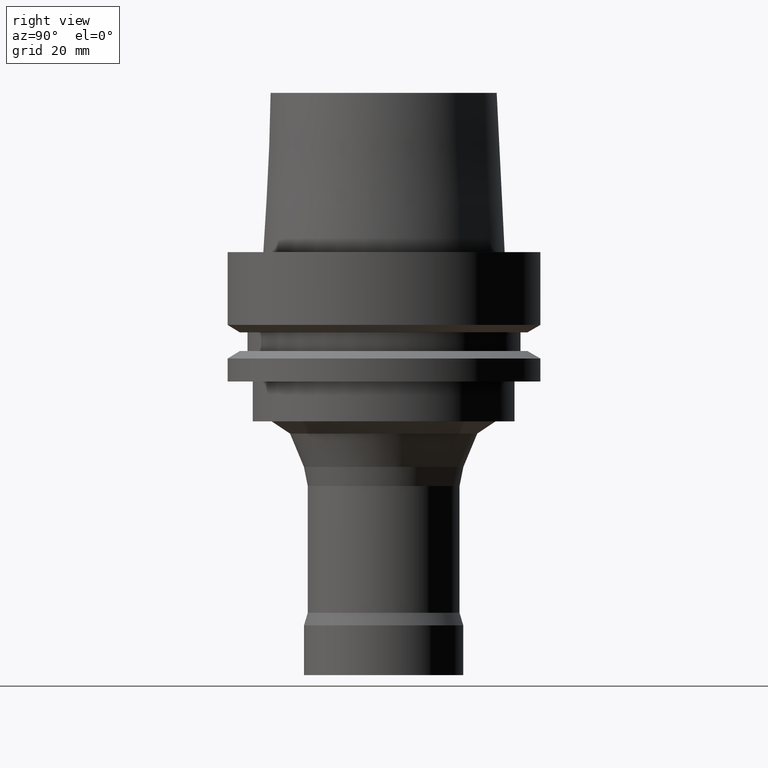
[diagram: clean part render]
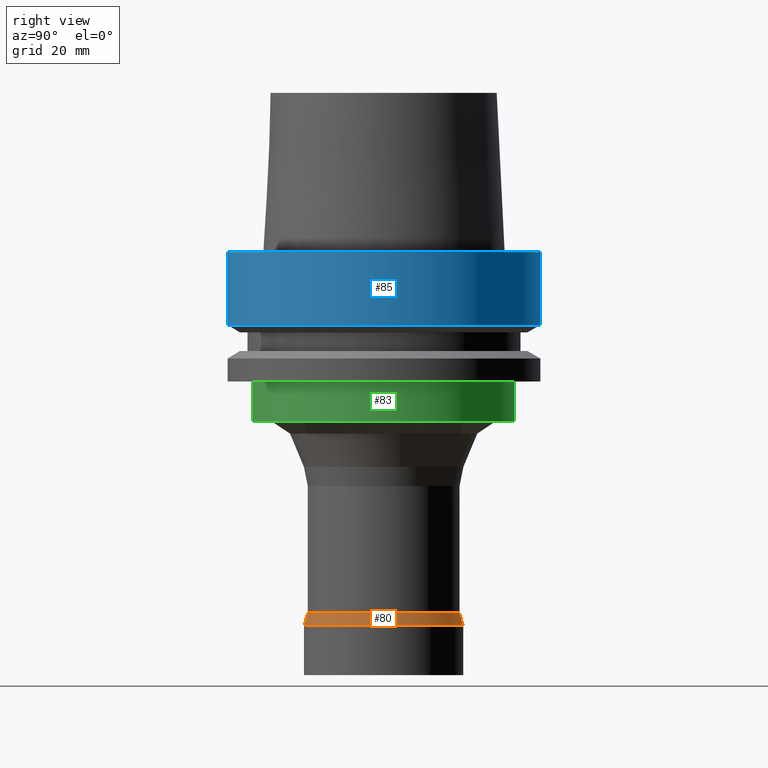
[diagram: same view with three faces highlighted in distinct colors, each labeled with its STEP entity id]
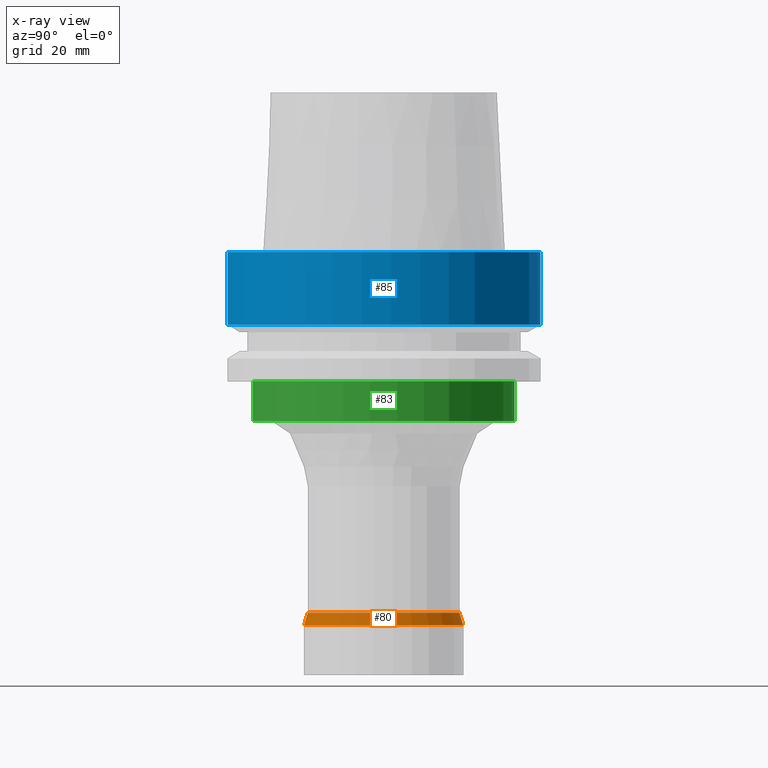
[diagram: x-ray of the same camera — body ghosted, the three highlighted faces saturated]
A machine part, right view with three faces highlighted in distinct colors.
The next image is the same camera in x-ray (body ghosted, the three faces saturated) — at least one of them is partly hidden behind the body in this view.
Their STEP definitions:

[orange] entity #80 — the highlighted conical surface has half-angle 16.494 deg.
#80=ADVANCED_FACE('',(#111,#112),#113,.T.);
#111=FACE_BOUND('',#169,.T.);
#112=FACE_BOUND('',#170,.T.);
#113=CONICAL_SURFACE('',#171,15.625,0.287865885212124);
#169=EDGE_LOOP('',(#237));
#170=EDGE_LOOP('',(#238));
#171=AXIS2_PLACEMENT_3D('',#239,#240,#241);
#237=ORIENTED_EDGE('',*,*,#316,.F.);
#238=ORIENTED_EDGE('',*,*,#315,.T.);
#239=CARTESIAN_POINT('',(4.51487434880889E-015,9.02974869761777E-015,-73.73349364));
#240=DIRECTION('',(6.12323399573677E-017,1.22464679914735E-016,-1.0));
#241=DIRECTION('',(-1.23259516440783E-032,1.0,1.22464679914735E-016));
#315=EDGE_CURVE('',#339,#339,#340,.T.);
#316=EDGE_CURVE('',#341,#341,#342,.T.);
#339=VERTEX_POINT('',#377);
#340=CIRCLE('',#378,15.25);
#341=VERTEX_POINT('',#379);
#342=CIRCLE('',#380,16.0);
#377=CARTESIAN_POINT('',(4.4373232008152E-015,15.25,-72.46698728));
#378=AXIS2_PLACEMENT_3D('',#420,#421,#422);
#379=CARTESIAN_POINT('',(4.59242549680257E-015,16.0,-75.0));
#380=AXIS2_PLACEMENT_3D('',#423,#424,#425);
#420=CARTESIAN_POINT('',(4.4373232008152E-015,8.87464640163039E-015,-72.46698728));
#421=DIRECTION('',(6.12323399573677E-017,1.22464679914735E-016,-1.0));
#422=DIRECTION('',(-1.23259516440783E-032,1.0,1.22464679914735E-016));
#423=CARTESIAN_POINT('',(4.59242549680257E-015,9.18485099360515E-015,-75.0));
#424=DIRECTION('',(6.12323399573677E-017,1.22464679914735E-016,-1.0));
#425=DIRECTION('',(-1.23259516440783E-032,1.0,1.22464679914735E-016));

[blue] entity #85 — the highlighted cylindrical surface (bore or boss wall) has radius 31.5 mm, axis along (-0, -0, 1).
#85=ADVANCED_FACE('',(#125,#126),#127,.T.);
#125=FACE_BOUND('',#183,.T.);
#126=FACE_BOUND('',#184,.T.);
#127=CYLINDRICAL_SURFACE('',#185,31.5);
#183=EDGE_LOOP('',(#261));
#184=EDGE_LOOP('',(#262));
#185=AXIS2_PLACEMENT_3D('',#263,#264,#265);
#261=ORIENTED_EDGE('',*,*,#321,.F.);
#262=ORIENTED_EDGE('',*,*,#319,.T.);
#263=CARTESIAN_POINT('',(4.47684973986342E-016,8.95369947972684E-016,-7.311250465));
#264=DIRECTION('',(-6.12323399573677E-017,-1.22464679914735E-016,1.0));
#265=DIRECTION('',(-1.23259516440783E-032,1.0,1.22464679914735E-016));
#319=EDGE_CURVE('',#347,#347,#348,.T.);
#321=EDGE_CURVE('',#351,#351,#352,.T.);
#347=VERTEX_POINT('',#385);
#348=CIRCLE('',#386,31.5);
#351=VERTEX_POINT('',#389);
#352=CIRCLE('',#390,31.5);
#385=CARTESIAN_POINT('',(-3.8214424279273E-031,31.5,3.75763741731416E-015));
#386=AXIS2_PLACEMENT_3D('',#432,#433,#434);
#389=CARTESIAN_POINT('',(8.95369947972684E-016,31.5,-14.62250093));
#390=AXIS2_PLACEMENT_3D('',#438,#439,#440);
#432=CARTESIAN_POINT('',(0.0,0.0,0.0));
#433=DIRECTION('',(6.12323399573677E-017,1.22464679914735E-016,-1.0));
#434=DIRECTION('',(-1.23259516440783E-032,1.0,1.22464679914735E-016));
#438=CARTESIAN_POINT('',(8.95369947972685E-016,1.79073989594537E-015,-14.62250093));
#439=DIRECTION('',(6.12323399573677E-017,1.22464679914735E-016,-1.0));
#440=DIRECTION('',(-1.23259516440783E-032,1.0,1.22464679914735E-016));

[green] entity #83 — the highlighted cylindrical surface (bore or boss wall) has radius 26.3 mm, axis along (-0, -0, 1).
#83=ADVANCED_FACE('',(#119,#120),#121,.T.);
#119=FACE_BOUND('',#177,.T.);
#120=FACE_BOUND('',#178,.T.);
#121=CYLINDRICAL_SURFACE('',#179,26.3);
#177=EDGE_LOOP('',(#251));
#178=EDGE_LOOP('',(#252));
#179=AXIS2_PLACEMENT_3D('',#253,#254,#255);
#251=ORIENTED_EDGE('',*,*,#311,.F.);
#252=ORIENTED_EDGE('',*,*,#318,.F.);
#253=CARTESIAN_POINT('',(1.83697019872103E-015,3.67394039744206E-015,-30.0));
#254=DIRECTION('',(-6.12323399573677E-017,-1.22464679914735E-016,1.0));
#255=DIRECTION('',(-1.23259516440783E-032,1.0,1.22464679914735E-016));
#311=EDGE_CURVE('',#331,#331,#332,.T.);
#318=EDGE_CURVE('',#345,#345,#346,.T.);
#331=VERTEX_POINT('',#369);
#332=CIRCLE('',#370,26.3);
#345=VERTEX_POINT('',#383);
#346=CIRCLE('',#384,26.3);
#369=CARTESIAN_POINT('',(2.0818995585505E-015,26.3,-34.0));
#370=AXIS2_PLACEMENT_3D('',#408,#409,#410);
#383=CARTESIAN_POINT('',(1.59204083889156E-015,26.3,-26.0));
#384=AXIS2_PLACEMENT_3D('',#429,#430,#431);
#408=CARTESIAN_POINT('',(2.0818995585505E-015,4.163799117101E-015,-34.0));
#409=DIRECTION('',(6.12323399573677E-017,1.22464679914735E-016,-1.0));
#410=DIRECTION('',(-1.23259516440783E-032,1.0,1.22464679914735E-016));
#429=CARTESIAN_POINT('',(1.59204083889156E-015,3.18408167778312E-015,-26.0));
#430=DIRECTION('',(-6.12323399573677E-017,1.26194903818617E-017,1.0));
#431=DIRECTION('',(-4.05443180561814E-033,1.0,-1.26194903818617E-017));